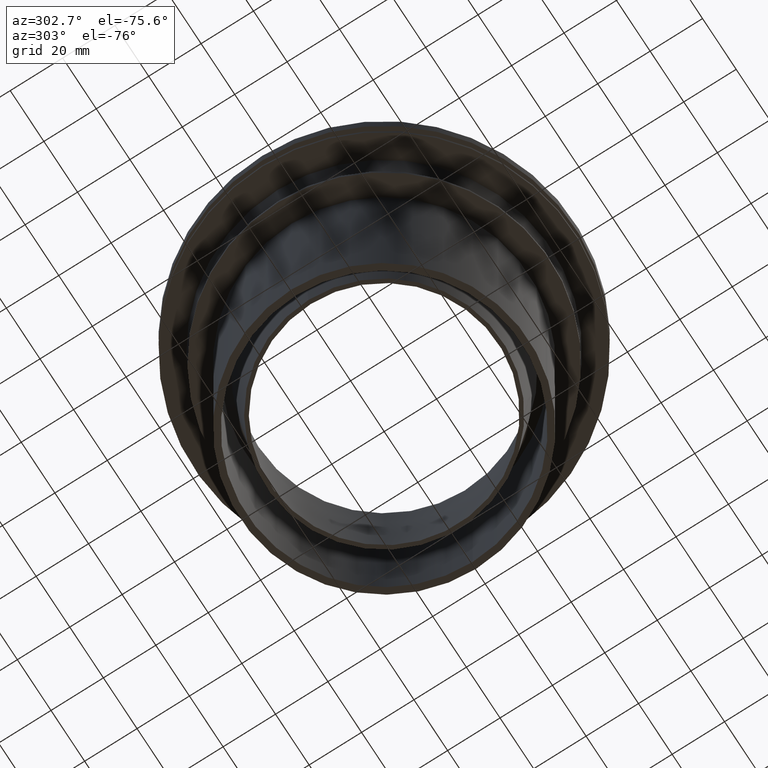
[diagram: clean part render]
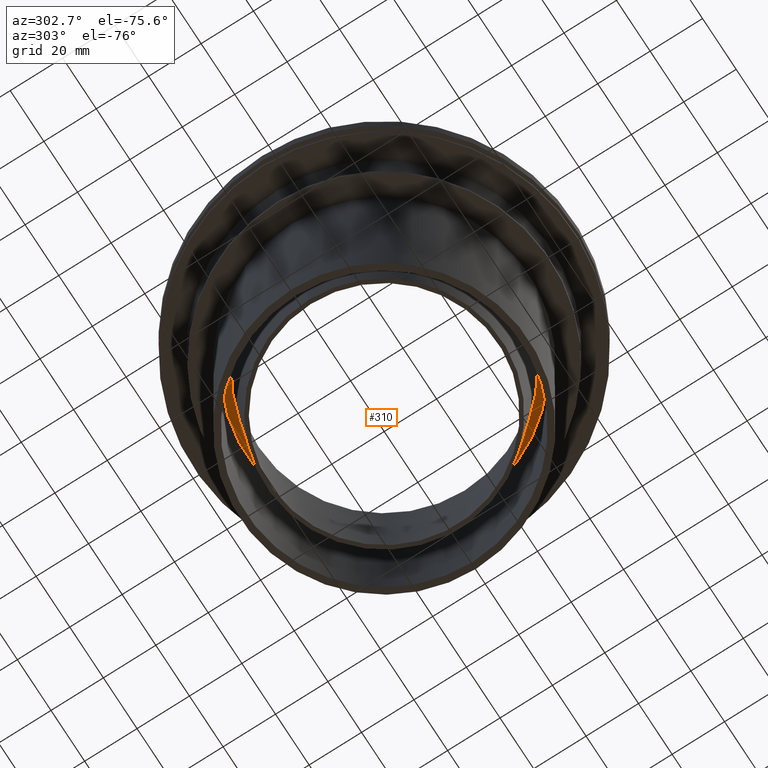
[diagram: same view with one face highlighted and labeled with its STEP entity id]
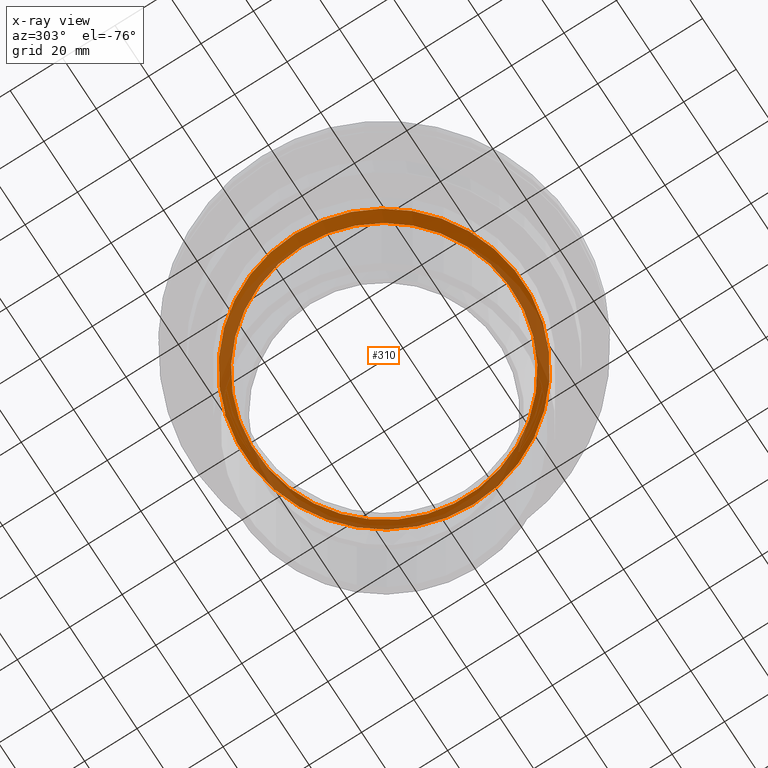
[diagram: x-ray of the same camera — body ghosted, the highlighted face saturated]
A machine part, auxiliary view. The second image highlights one B-rep face of the part: STEP entity #310.
The next image is the same camera in x-ray: the body ghosted, the highlighted face saturated — about 42% of this face is hidden behind the body in this view.
In plain terms, the highlighted conical surface has half-angle 53.13 deg.
Its self-contained STEP definition (entity closure, byte-faithful):
#25=CONICAL_SURFACE('',#384,49.223,0.92729521800161);
#88=ORIENTED_EDGE('',*,*,#121,.T.);
#89=ORIENTED_EDGE('',*,*,#120,.F.);
#120=EDGE_CURVE('',#146,#146,#172,.T.);
#121=EDGE_CURVE('',#147,#147,#173,.T.);
#146=VERTEX_POINT('',#569);
#147=VERTEX_POINT('',#572);
#172=CIRCLE('',#383,49.223);
#173=CIRCLE('',#385,53.223);
#218=EDGE_LOOP('',(#88));
#219=EDGE_LOOP('',(#89));
#270=FACE_BOUND('',#218,.T.);
#271=FACE_BOUND('',#219,.T.);
#310=ADVANCED_FACE('',(#270,#271),#25,.T.);
#383=AXIS2_PLACEMENT_3D('',#568,#480,#481);
#384=AXIS2_PLACEMENT_3D('',#570,#482,#483);
#385=AXIS2_PLACEMENT_3D('',#571,#484,#485);
#480=DIRECTION('',(0.,0.,-1.));
#481=DIRECTION('',(-1.,0.,0.));
#482=DIRECTION('',(0.,0.,1.));
#483=DIRECTION('',(1.,0.,0.));
#484=DIRECTION('',(0.,0.,-1.));
#485=DIRECTION('',(-1.,0.,0.));
#568=CARTESIAN_POINT('',(0.,0.,-41.));
#569=CARTESIAN_POINT('',(-49.223,0.,-41.));
#570=CARTESIAN_POINT('',(0.,0.,-41.));
#571=CARTESIAN_POINT('',(0.,0.,-38.));
#572=CARTESIAN_POINT('',(-53.223,0.,-38.));